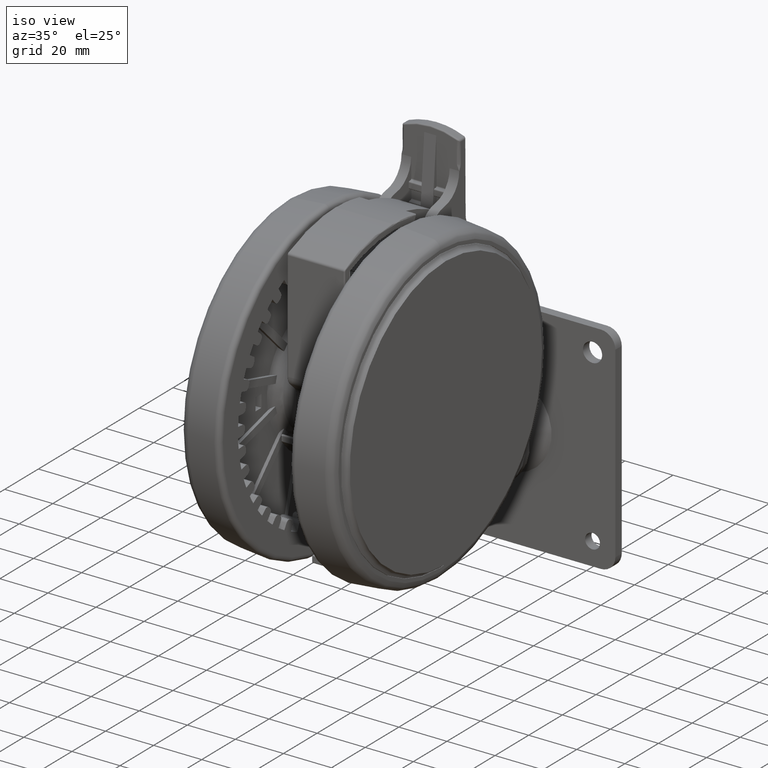
[diagram: clean part render]
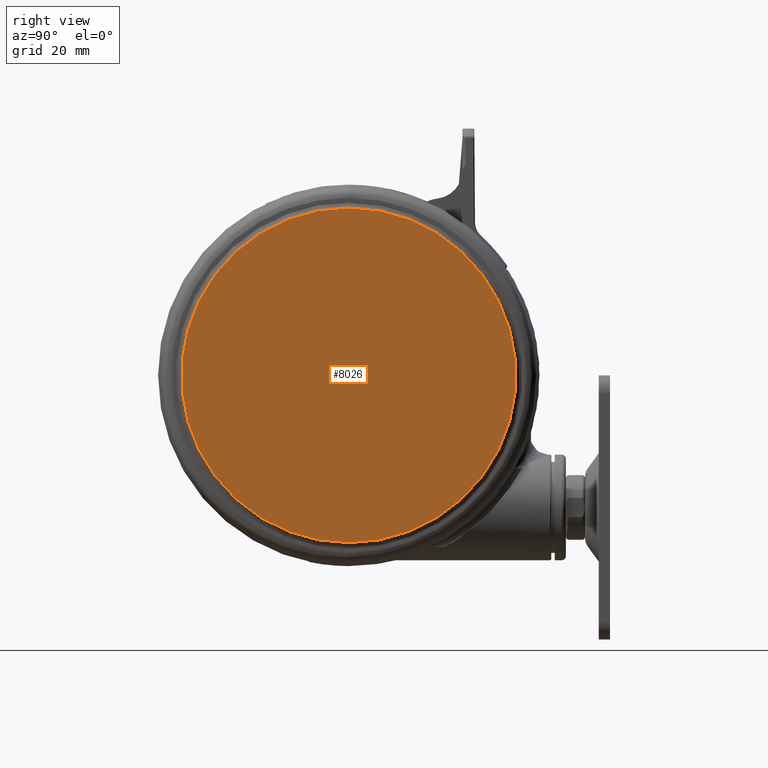
[diagram: tour spotlight — one face highlighted and labeled with its STEP entity id]
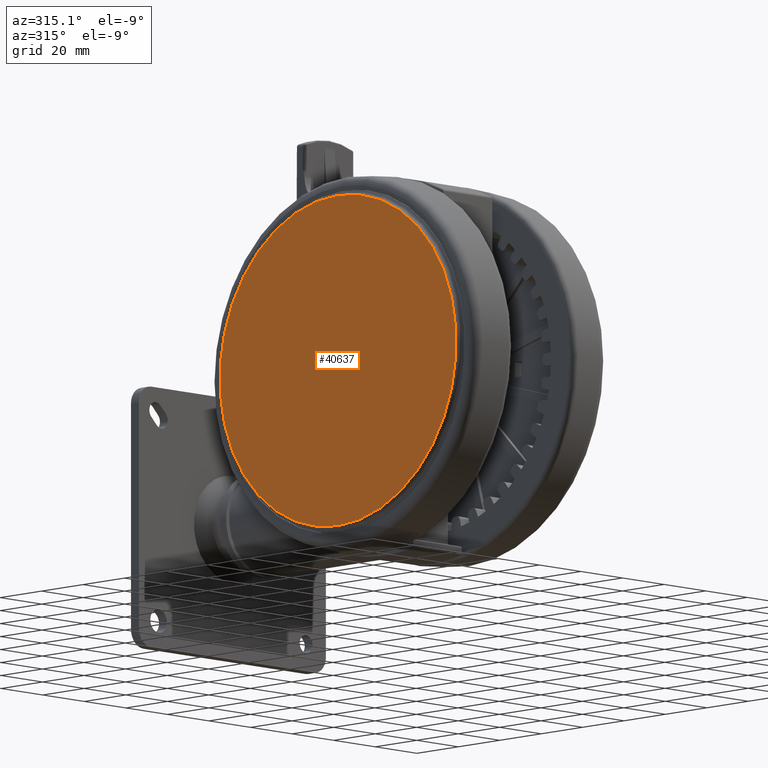
[diagram: tour spotlight — one face highlighted and labeled with its STEP entity id]
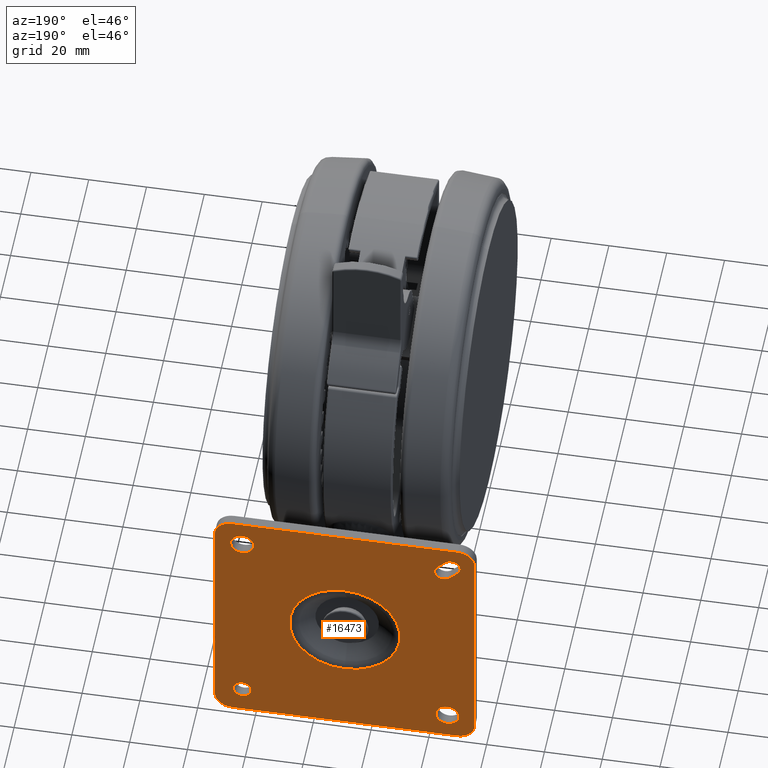
[diagram: tour spotlight — one face highlighted and labeled with its STEP entity id]
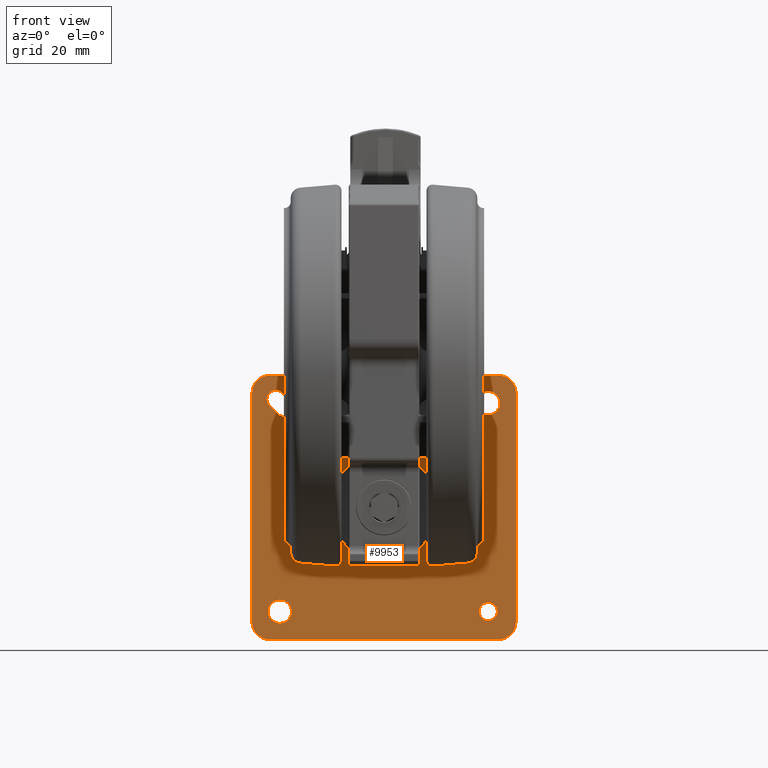
[diagram: tour spotlight — one face highlighted and labeled with its STEP entity id]
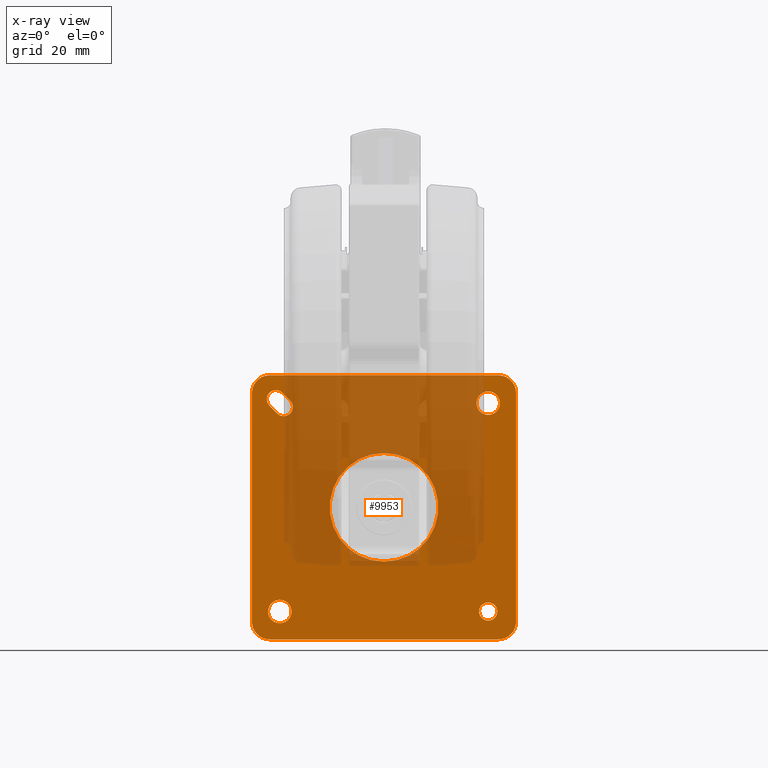
[diagram: x-ray of the same camera — body ghosted, this tour face saturated]
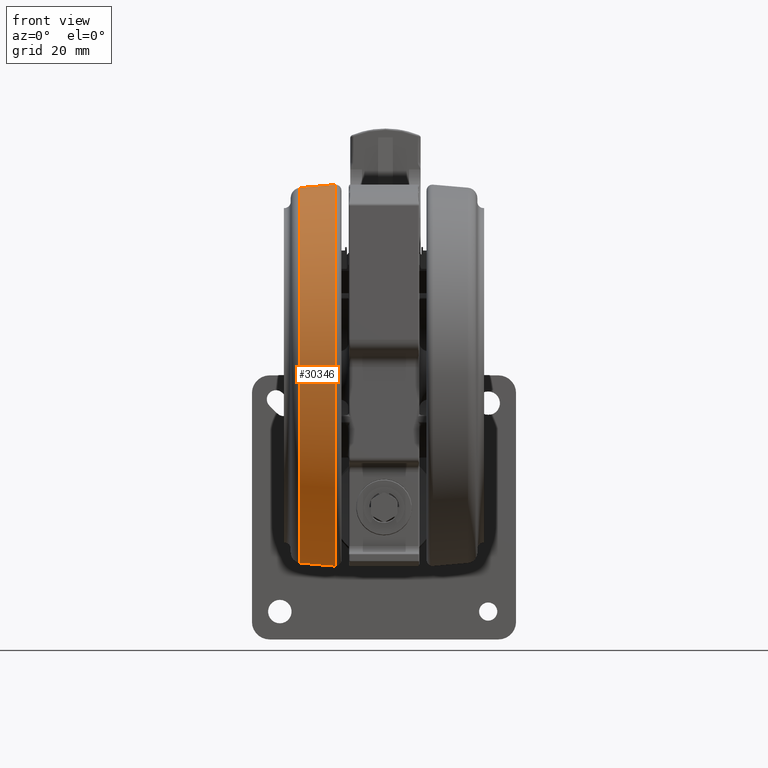
[diagram: tour spotlight — one face highlighted and labeled with its STEP entity id]
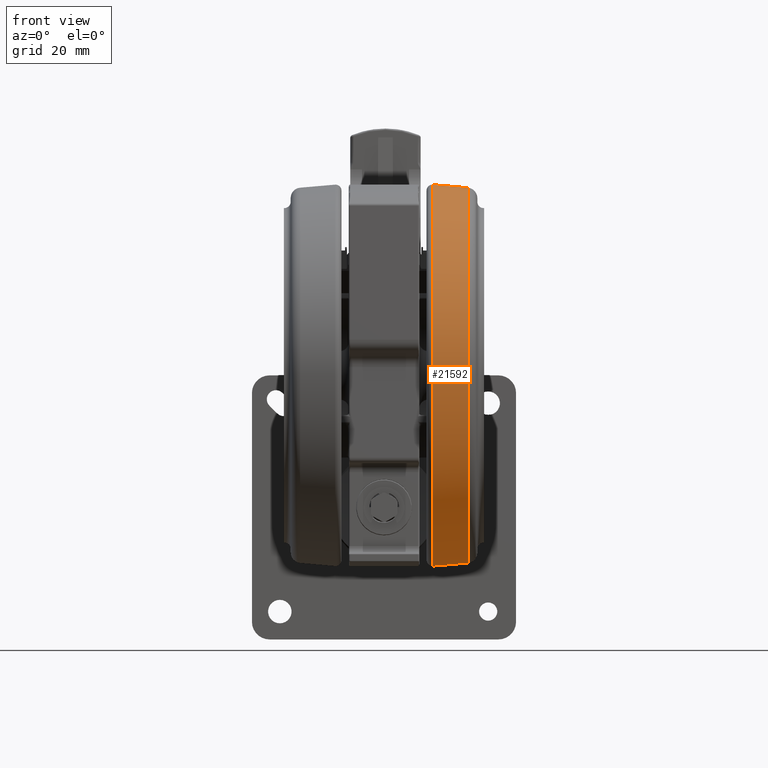
[diagram: tour spotlight — one face highlighted and labeled with its STEP entity id]
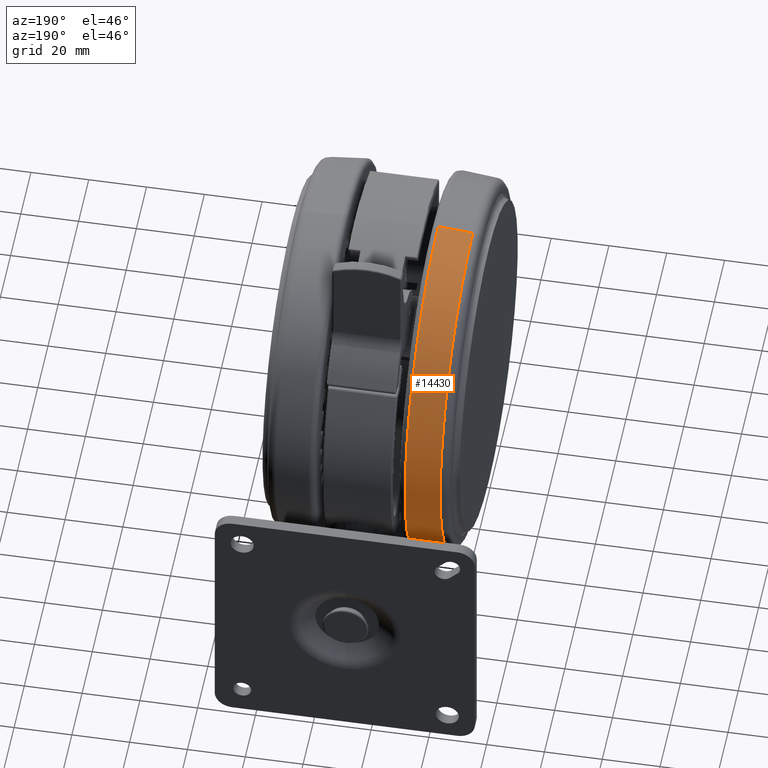
[diagram: tour spotlight — one face highlighted and labeled with its STEP entity id]
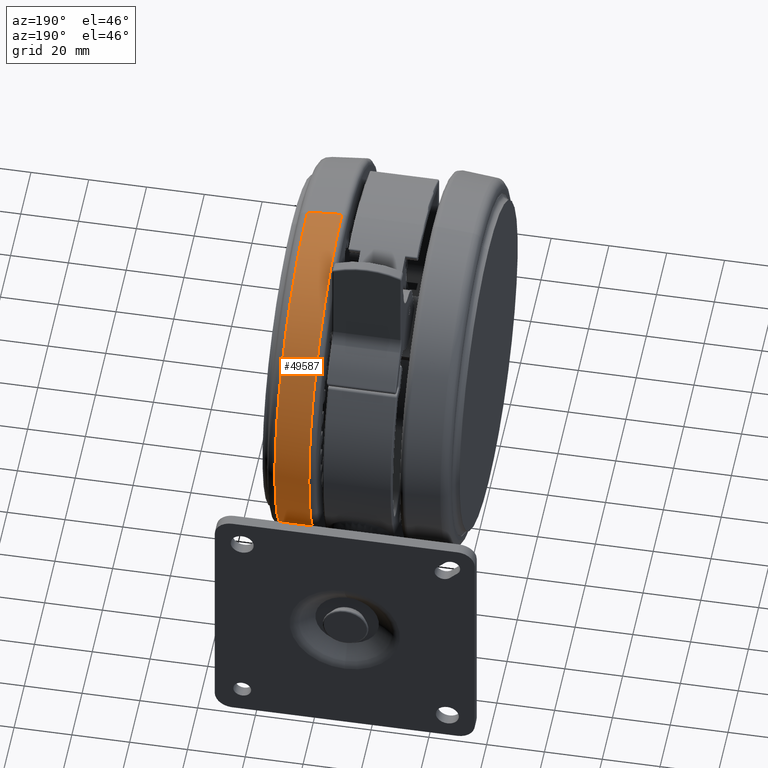
[diagram: tour spotlight — one face highlighted and labeled with its STEP entity id]
A machine part: a face-by-face anatomy tour. The part has 2612 B-rep faces; the first image is the clean iso view, then the 8 largest visible faces are spotlighted one at a time (largest first), each with its STEP entity span.

Face 1 — right view, entity #8026. In plain terms, the highlighted planar face has unit normal (1, 0, 0).
Definition (entity closure, byte-faithful):
#1120 = EDGE_CURVE ( 'NONE', #50924, #71392, #28339, .T. ) ;
#4548 = ORIENTED_EDGE ( 'NONE', *, *, #1120, .T. ) ;
#8026 = ADVANCED_FACE ( 'NONE', ( #55166 ), #8477, .T. ) ;
#8477 = PLANE ( 'NONE',  #77675 ) ;
#10067 = ORIENTED_EDGE ( 'NONE', *, *, #20311, .T. ) ;
#20095 = CARTESIAN_POINT ( 'NONE',  ( 57.00000000000000000, -1.516846258613197000E-014, 2.168404344971008900E-015 ) ) ;
#20311 = EDGE_CURVE ( 'NONE', #71392, #50924, #52476, .T. ) ;
#21277 = DIRECTION ( 'NONE',  ( 0.0000000000000000000, 0.0000000000000000000, 1.000000000000000000 ) ) ;
#28339 = CIRCLE ( 'NONE', #58859, 57.00000000000000000 ) ;
#30460 = DIRECTION ( 'NONE',  ( 0.0000000000000000000, 0.0000000000000000000, 1.000000000000000000 ) ) ;
#33820 = CARTESIAN_POINT ( 'NONE',  ( 0.0000000000000000000, 0.0000000000000000000, 2.168404344971008900E-015 ) ) ;
#37102 = CARTESIAN_POINT ( 'NONE',  ( 0.0000000000000000000, 0.0000000000000000000, 2.168404344971008900E-015 ) ) ;
#43526 = DIRECTION ( 'NONE',  ( 1.000000000000000000, -3.885780586188049900E-016, 0.0000000000000000000 ) ) ;
#50924 = VERTEX_POINT ( 'NONE', #58565 ) ;
#52476 = CIRCLE ( 'NONE', #78544, 57.00000000000000000 ) ;
#55166 = FACE_OUTER_BOUND ( 'NONE', #81754, .T. ) ;
#58565 = CARTESIAN_POINT ( 'NONE',  ( -57.00000000000000000, 2.214894934127188600E-014, 2.168404344971008900E-015 ) ) ;
#58859 = AXIS2_PLACEMENT_3D ( 'NONE', #37102, #81641, #43526 ) ;
#65891 = DIRECTION ( 'NONE',  ( 1.000000000000000000, -3.885780586188049900E-016, 0.0000000000000000000 ) ) ;
#68701 = CARTESIAN_POINT ( 'NONE',  ( 0.0000000000000000000, 0.0000000000000000000, 2.168404344971008900E-015 ) ) ;
#71392 = VERTEX_POINT ( 'NONE', #20095 ) ;
#75041 = DIRECTION ( 'NONE',  ( 1.000000000000000000, -3.885780586188049900E-016, 0.0000000000000000000 ) ) ;
#77675 = AXIS2_PLACEMENT_3D ( 'NONE', #33820, #21277, #65891 ) ;
#78544 = AXIS2_PLACEMENT_3D ( 'NONE', #68701, #30460, #75041 ) ;
#81641 = DIRECTION ( 'NONE',  ( 0.0000000000000000000, 0.0000000000000000000, 1.000000000000000000 ) ) ;
#81754 = EDGE_LOOP ( 'NONE', ( #4548, #10067 ) ) ;

Face 2 — auxiliary view, entity #40637. In plain terms, the highlighted planar face has unit normal (-1, 0, 0).
Definition (entity closure, byte-faithful):
#10881 = AXIS2_PLACEMENT_3D ( 'NONE', #69934, #31684, #76250 ) ;
#14899 = EDGE_CURVE ( 'NONE', #31316, #31272, #49527, .T. ) ;
#22853 = AXIS2_PLACEMENT_3D ( 'NONE', #67783, #35984, #80538 ) ;
#23168 = PLANE ( 'NONE',  #22853 ) ;
#29698 = CARTESIAN_POINT ( 'NONE',  ( 0.0000000000000000000, 0.0000000000000000000, -68.20000000000008800 ) ) ;
#29818 = EDGE_CURVE ( 'NONE', #31272, #31316, #36738, .T. ) ;
#30174 = FACE_OUTER_BOUND ( 'NONE', #42712, .T. ) ;
#31272 = VERTEX_POINT ( 'NONE', #49348 ) ;
#31316 = VERTEX_POINT ( 'NONE', #62393 ) ;
#31684 = DIRECTION ( 'NONE',  ( 0.0000000000000000000, 0.0000000000000000000, -1.000000000000000000 ) ) ;
#35571 = ORIENTED_EDGE ( 'NONE', *, *, #14899, .T. ) ;
#35984 = DIRECTION ( 'NONE',  ( 0.0000000000000000000, 0.0000000000000000000, -1.000000000000000000 ) ) ;
#36143 = DIRECTION ( 'NONE',  ( -1.000000000000000000, 0.0000000000000000000, 0.0000000000000000000 ) ) ;
#36738 = CIRCLE ( 'NONE', #10881, 57.00000000000000000 ) ;
#40637 = ADVANCED_FACE ( 'NONE', ( #30174 ), #23168, .T. ) ;
#42712 = EDGE_LOOP ( 'NONE', ( #35571, #74150 ) ) ;
#47246 = AXIS2_PLACEMENT_3D ( 'NONE', #29698, #74288, #36143 ) ;
#49348 = CARTESIAN_POINT ( 'NONE',  ( -57.00000000000000000, 6.980486755139912900E-015, -68.20000000000008800 ) ) ;
#49527 = CIRCLE ( 'NONE', #47246, 57.00000000000000000 ) ;
#62393 = CARTESIAN_POINT ( 'NONE',  ( 57.00000000000000000, 0.0000000000000000000, -68.20000000000008800 ) ) ;
#67783 = CARTESIAN_POINT ( 'NONE',  ( 0.0000000000000000000, 0.0000000000000000000, -68.20000000000008800 ) ) ;
#69934 = CARTESIAN_POINT ( 'NONE',  ( 0.0000000000000000000, 0.0000000000000000000, -68.20000000000008800 ) ) ;
#74150 = ORIENTED_EDGE ( 'NONE', *, *, #29818, .T. ) ;
#74288 = DIRECTION ( 'NONE',  ( 0.0000000000000000000, 0.0000000000000000000, -1.000000000000000000 ) ) ;
#76250 = DIRECTION ( 'NONE',  ( -1.000000000000000000, 0.0000000000000000000, 0.0000000000000000000 ) ) ;
#80538 = DIRECTION ( 'NONE',  ( -1.000000000000000000, 0.0000000000000000000, 0.0000000000000000000 ) ) ;

Face 3 — auxiliary view, entity #16473. In plain terms, the highlighted planar face has unit normal (-0, -1, -0).
Definition (entity closure, byte-faithful):
#115 = AXIS2_PLACEMENT_3D ( 'NONE', #45879, #7668, #52278 ) ;
#154 = ORIENTED_EDGE ( 'NONE', *, *, #12690, .F. ) ;
#1093 = EDGE_CURVE ( 'NONE', #22807, #79114, #49373, .T. ) ;
#1169 = EDGE_CURVE ( 'NONE', #31422, #22379, #77191, .T. ) ;
#1447 = VECTOR ( 'NONE', #30300, 1000.000000000000100 ) ;
#1642 = LINE ( 'NONE', #33021, #67485 ) ;
#1824 = VERTEX_POINT ( 'NONE', #72280 ) ;
#1995 = VECTOR ( 'NONE', #55781, 1000.000000000000000 ) ;
#2106 = EDGE_CURVE ( 'NONE', #66263, #18284, #30172, .T. ) ;
#2372 = EDGE_CURVE ( 'NONE', #73530, #33333, #75983, .T. ) ;
#2755 = CARTESIAN_POINT ( 'NONE',  ( 13.94350288425429200, 88.99999999999994300, -68.25649711574547500 ) ) ;
#4233 = ORIENTED_EDGE ( 'NONE', *, *, #41600, .T. ) ;
#4270 = EDGE_CURVE ( 'NONE', #44965, #57533, #19049, .T. ) ;
#4754 = DIRECTION ( 'NONE',  ( -1.000000000000000000, -3.469446951953622900E-015, 2.710505431213768000E-016 ) ) ;
#5252 = ORIENTED_EDGE ( 'NONE', *, *, #56586, .T. ) ;
#5589 = DIRECTION ( 'NONE',  ( -3.720744363710750200E-015, 1.000000000000000000, 1.577721810442024700E-030 ) ) ;
#5860 = CARTESIAN_POINT ( 'NONE',  ( 10.84350288425428500, 88.99999999999992900, -68.25649711574547500 ) ) ;
#6876 = CIRCLE ( 'NONE', #58065, 3.999999999999989800 ) ;
#7549 = EDGE_CURVE ( 'NONE', #63924, #22379, #23290, .T. ) ;
#7668 = DIRECTION ( 'NONE',  ( 3.720744363710750200E-015, -1.000000000000000000, -1.577721810442024700E-030 ) ) ;
#7692 = CARTESIAN_POINT ( 'NONE',  ( 83.99999999999998600, 89.00000000000018500, 10.89999999999991700 ) ) ;
#8478 = EDGE_LOOP ( 'NONE', ( #58381, #63881 ) ) ;
#8622 = ORIENTED_EDGE ( 'NONE', *, *, #59380, .T. ) ;
#10371 = ORIENTED_EDGE ( 'NONE', *, *, #62015, .F. ) ;
#11189 = CARTESIAN_POINT ( 'NONE',  ( 6.938893903907228400E-015, 88.99999999999988600, 10.89999999999994500 ) ) ;
#11328 = FACE_BOUND ( 'NONE', #43457, .T. ) ;
#11579 = CIRCLE ( 'NONE', #41534, 3.100000000000022700 ) ;
#11849 = EDGE_CURVE ( 'NONE', #45661, #27768, #1642, .T. ) ;
#12273 = DIRECTION ( 'NONE',  ( 1.000000000000000000, 4.476705744456268300E-015, 0.0000000000000000000 ) ) ;
#12516 = CARTESIAN_POINT ( 'NONE',  ( 5.999999999999991100, 88.99999999999991500, -73.10000000000005100 ) ) ;
#12568 = CARTESIAN_POINT ( 'NONE',  ( 80.50000000000659400, 89.00000000000017100, 1.400000000006520900 ) ) ;
#12690 = EDGE_CURVE ( 'NONE', #55326, #55475, #18931, .T. ) ;
#13082 = CARTESIAN_POINT ( 'NONE',  ( 83.99999999999998600, 89.00000000000018500, -73.10000000000008000 ) ) ;
#13325 = FACE_BOUND ( 'NONE', #8478, .T. ) ;
#13493 = CARTESIAN_POINT ( 'NONE',  ( 90.00000000000000000, 89.00000000000021300, 4.899999999999911500 ) ) ;
#14228 = CARTESIAN_POINT ( 'NONE',  ( 77.40000000000660000, 89.00000000000015600, 1.400000000006521800 ) ) ;
#14620 = EDGE_CURVE ( 'NONE', #1824, #55475, #20597, .T. ) ;
#15443 = DIRECTION ( 'NONE',  ( -3.720744363710750200E-015, 1.000000000000000000, 1.577721810442024700E-030 ) ) ;
#16473 = ADVANCED_FACE ( 'NONE', ( #11328, #13325, #28263, #77101, #60238, #43267 ), #56292, .F. ) ;
#16476 = CARTESIAN_POINT ( 'NONE',  ( 10.84350288425428500, 88.99999999999992900, -68.25649711574547500 ) ) ;
#17098 = CIRCLE ( 'NONE', #25046, 19.11832111921495800 ) ;
#18284 = VERTEX_POINT ( 'NONE', #48751 ) ;
#18386 = LINE ( 'NONE', #23925, #1447 ) ;
#18881 = AXIS2_PLACEMENT_3D ( 'NONE', #12516, #57124, #18946 ) ;
#18931 = LINE ( 'NONE', #11189, #1995 ) ;
#18946 = DIRECTION ( 'NONE',  ( -1.000000000000000000, -4.625929269271486100E-015, -2.312964634635743100E-015 ) ) ;
#18996 = DIRECTION ( 'NONE',  ( -1.000000000000000000, -4.476705744456288800E-015, 2.797941090285180500E-016 ) ) ;
#19049 = CIRCLE ( 'NONE', #50775, 3.999999999999989800 ) ;
#19504 = DIRECTION ( 'NONE',  ( -1.000000000000000000, -4.625929269271481400E-015, 2.312964634635740700E-015 ) ) ;
#19554 = AXIS2_PLACEMENT_3D ( 'NONE', #20674, #65278, #27057 ) ;
#19919 = DIRECTION ( 'NONE',  ( 3.720744363710750200E-015, -1.000000000000000000, -1.577721810442024700E-030 ) ) ;
#20047 = EDGE_LOOP ( 'NONE', ( #154, #48408, #52335, #57800, #55417, #5252, #28813, #79066 ) ) ;
#20597 = CIRCLE ( 'NONE', #18881, 5.999999999999999100 ) ;
#20674 = CARTESIAN_POINT ( 'NONE',  ( 6.000000000000012400, 88.99999999999991500, 4.899999999999924900 ) ) ;
#21182 = VERTEX_POINT ( 'NONE', #22294 ) ;
#21288 = VECTOR ( 'NONE', #60706, 1000.000000000000000 ) ;
#22030 = ORIENTED_EDGE ( 'NONE', *, *, #11849, .F. ) ;
#22294 = CARTESIAN_POINT ( 'NONE',  ( 25.88167888078495000, 88.99999999999998600, -34.10000000000005800 ) ) ;
#22379 = VERTEX_POINT ( 'NONE', #13493 ) ;
#22807 = VERTEX_POINT ( 'NONE', #31230 ) ;
#22864 = CIRCLE ( 'NONE', #74812, 3.099999999999991700 ) ;
#22876 = DIRECTION ( 'NONE',  ( 1.000000000000000000, 4.476705744456268300E-015, 0.0000000000000000000 ) ) ;
#23290 = LINE ( 'NONE', #47651, #21288 ) ;
#23925 = CARTESIAN_POINT ( 'NONE',  ( 13.03553390593259600, 88.99999999999992900, -70.44852813742376400 ) ) ;
#24275 = CARTESIAN_POINT ( 'NONE',  ( 6.000000000000012400, 88.99999999999991500, 10.89999999999992400 ) ) ;
#24508 = CARTESIAN_POINT ( 'NONE',  ( 44.99999999999990800, 89.00000000000005700, -34.10000000000006500 ) ) ;
#25046 = AXIS2_PLACEMENT_3D ( 'NONE', #58121, #19919, #64533 ) ;
#25488 = CARTESIAN_POINT ( 'NONE',  ( 13.49999999999339900, 88.99999999999992900, 1.400000000006533400 ) ) ;
#26200 = LINE ( 'NONE', #68316, #75030 ) ;
#27057 = DIRECTION ( 'NONE',  ( -1.000000000000000000, -4.625929269271486100E-015, 2.891205793294678800E-016 ) ) ;
#27207 = CIRCLE ( 'NONE', #30065, 6.000000000000005300 ) ;
#27271 = EDGE_CURVE ( 'NONE', #31422, #34780, #81882, .T. ) ;
#27768 = VERTEX_POINT ( 'NONE', #31804 ) ;
#28263 = FACE_BOUND ( 'NONE', #56221, .T. ) ;
#28813 = ORIENTED_EDGE ( 'NONE', *, *, #40702, .F. ) ;
#28851 = CARTESIAN_POINT ( 'NONE',  ( 90.00000000000000000, 89.00000000000021300, -73.10000000000008000 ) ) ;
#30065 = AXIS2_PLACEMENT_3D ( 'NONE', #13082, #57691, #19504 ) ;
#30172 = CIRCLE ( 'NONE', #82367, 3.099999999999991700 ) ;
#30300 = DIRECTION ( 'NONE',  ( -0.7071067811865413600, -2.630963570641473100E-015, -0.7071067811865536800 ) ) ;
#30872 = DIRECTION ( 'NONE',  ( -1.000000000000000000, -3.629447303787182700E-015, 3.629447303787182900E-016 ) ) ;
#30879 = DIRECTION ( 'NONE',  ( -1.000000000000000000, -3.720744363710750200E-015, 2.775557561562890400E-016 ) ) ;
#31017 = VECTOR ( 'NONE', #43634, 1000.000000000000000 ) ;
#31230 = CARTESIAN_POINT ( 'NONE',  ( 5.499999999993419500, 88.99999999999990100, 1.400000000006536000 ) ) ;
#31422 = VERTEX_POINT ( 'NONE', #7692 ) ;
#31547 = EDGE_LOOP ( 'NONE', ( #55879, #77618 ) ) ;
#31804 = CARTESIAN_POINT ( 'NONE',  ( 8.651471862575983000, 88.99999999999991500, -66.06446609406715700 ) ) ;
#32267 = CARTESIAN_POINT ( 'NONE',  ( 6.938893903907228400E-015, 88.99999999999988600, 4.899999999999924900 ) ) ;
#32326 = DIRECTION ( 'NONE',  ( 3.720744363710750200E-015, -1.000000000000000000, -1.577721810442024700E-030 ) ) ;
#33021 = CARTESIAN_POINT ( 'NONE',  ( 5.964466094067137900, 88.99999999999991500, -68.75147186257601100 ) ) ;
#33188 = AXIS2_PLACEMENT_3D ( 'NONE', #81079, #42984, #4754 ) ;
#33333 = VERTEX_POINT ( 'NONE', #48930 ) ;
#34017 = CARTESIAN_POINT ( 'NONE',  ( 80.50000000000659400, 89.00000000000017100, 1.400000000006520900 ) ) ;
#34577 = CARTESIAN_POINT ( 'NONE',  ( 80.50000000000659400, 89.00000000000017100, -69.60000000000667300 ) ) ;
#34780 = VERTEX_POINT ( 'NONE', #24275 ) ;
#37218 = EDGE_CURVE ( 'NONE', #33333, #57789, #18386, .T. ) ;
#38052 = CARTESIAN_POINT ( 'NONE',  ( 64.11832111921486900, 89.00000000000011400, -34.10000000000007200 ) ) ;
#39652 = CARTESIAN_POINT ( 'NONE',  ( 10.34852813742374200, 88.99999999999992900, -73.13553390593266100 ) ) ;
#40043 = AXIS2_PLACEMENT_3D ( 'NONE', #24508, #69122, #30872 ) ;
#40498 = DIRECTION ( 'NONE',  ( -1.000000000000000000, -4.476705744456288800E-015, 2.797941090285180500E-016 ) ) ;
#40681 = CIRCLE ( 'NONE', #115, 3.999999999999989800 ) ;
#40702 = EDGE_CURVE ( 'NONE', #1824, #44324, #26200, .T. ) ;
#40728 = ORIENTED_EDGE ( 'NONE', *, *, #66026, .F. ) ;
#41039 = DIRECTION ( 'NONE',  ( -1.000000000000000000, -3.469446951953622900E-015, 0.0000000000000000000 ) ) ;
#41534 = AXIS2_PLACEMENT_3D ( 'NONE', #53655, #15443, #60066 ) ;
#41600 = EDGE_CURVE ( 'NONE', #21182, #61531, #17098, .T. ) ;
#42974 = DIRECTION ( 'NONE',  ( 1.000000000000000000, 3.720744363710750200E-015, -2.004569350017642500E-016 ) ) ;
#42984 = DIRECTION ( 'NONE',  ( 3.720744363710750200E-015, -1.000000000000000000, -1.577721810442024700E-030 ) ) ;
#43267 = FACE_OUTER_BOUND ( 'NONE', #20047, .T. ) ;
#43457 = EDGE_LOOP ( 'NONE', ( #4233, #71360 ) ) ;
#43634 = DIRECTION ( 'NONE',  ( -1.000000000000000000, -3.720744363710750200E-015, 4.625929269271454400E-017 ) ) ;
#43796 = CARTESIAN_POINT ( 'NONE',  ( 83.99999999999998600, 89.00000000000018500, 4.899999999999911500 ) ) ;
#44215 = EDGE_CURVE ( 'NONE', #79114, #22807, #40681, .T. ) ;
#44324 = VERTEX_POINT ( 'NONE', #78684 ) ;
#44965 = VERTEX_POINT ( 'NONE', #69438 ) ;
#45037 = CIRCLE ( 'NONE', #64643, 3.100000000000005400 ) ;
#45661 = VERTEX_POINT ( 'NONE', #76763 ) ;
#45879 = CARTESIAN_POINT ( 'NONE',  ( 9.499999999993409700, 88.99999999999991500, 1.400000000006534900 ) ) ;
#46563 = EDGE_CURVE ( 'NONE', #55326, #34780, #63470, .T. ) ;
#47651 = CARTESIAN_POINT ( 'NONE',  ( 90.00000000000000000, 89.00000000000021300, -79.10000000000009400 ) ) ;
#47894 = ORIENTED_EDGE ( 'NONE', *, *, #2372, .F. ) ;
#48408 = ORIENTED_EDGE ( 'NONE', *, *, #46563, .T. ) ;
#48751 = CARTESIAN_POINT ( 'NONE',  ( 83.60000000000658800, 89.00000000000018500, 1.400000000006519800 ) ) ;
#48930 = CARTESIAN_POINT ( 'NONE',  ( 13.03553390593259600, 88.99999999999992900, -70.44852813742376400 ) ) ;
#49373 = CIRCLE ( 'NONE', #33188, 3.999999999999989800 ) ;
#50230 = DIRECTION ( 'NONE',  ( -1.000000000000000000, -4.625929269271481400E-015, 2.891205793294675900E-016 ) ) ;
#50515 = DIRECTION ( 'NONE',  ( -3.720744363710750200E-015, 1.000000000000000000, 1.577721810442024700E-030 ) ) ;
#50775 = AXIS2_PLACEMENT_3D ( 'NONE', #34577, #79133, #41039 ) ;
#51020 = EDGE_CURVE ( 'NONE', #18284, #66263, #22864, .T. ) ;
#52278 = DIRECTION ( 'NONE',  ( -1.000000000000000000, -3.469446951953622900E-015, 2.710505431213768000E-016 ) ) ;
#52335 = ORIENTED_EDGE ( 'NONE', *, *, #27271, .F. ) ;
#52938 = CARTESIAN_POINT ( 'NONE',  ( -6.938893903907228400E-015, 88.99999999999988600, -73.10000000000005100 ) ) ;
#53655 = CARTESIAN_POINT ( 'NONE',  ( 8.156497115745391800, 88.99999999999991500, -70.94350288425435700 ) ) ;
#55326 = VERTEX_POINT ( 'NONE', #32267 ) ;
#55417 = ORIENTED_EDGE ( 'NONE', *, *, #7549, .F. ) ;
#55475 = VERTEX_POINT ( 'NONE', #52938 ) ;
#55781 = DIRECTION ( 'NONE',  ( -2.220446049250315100E-016, 5.146084811402689800E-031, -1.000000000000000000 ) ) ;
#55879 = ORIENTED_EDGE ( 'NONE', *, *, #1093, .T. ) ;
#56221 = EDGE_LOOP ( 'NONE', ( #8622, #79116 ) ) ;
#56292 = PLANE ( 'NONE',  #70290 ) ;
#56586 = EDGE_CURVE ( 'NONE', #63924, #44324, #27207, .T. ) ;
#57124 = DIRECTION ( 'NONE',  ( -3.720744363710750200E-015, 1.000000000000000000, 1.577721810442024700E-030 ) ) ;
#57180 = DIRECTION ( 'NONE',  ( 3.720744363710750200E-015, -1.000000000000000000, -1.577721810442024700E-030 ) ) ;
#57533 = VERTEX_POINT ( 'NONE', #62529 ) ;
#57691 = DIRECTION ( 'NONE',  ( -3.720744363710750200E-015, 1.000000000000000000, 1.577721810442024700E-030 ) ) ;
#57789 = VERTEX_POINT ( 'NONE', #39652 ) ;
#57800 = ORIENTED_EDGE ( 'NONE', *, *, #1169, .T. ) ;
#58065 = AXIS2_PLACEMENT_3D ( 'NONE', #70579, #32326, #76906 ) ;
#58121 = CARTESIAN_POINT ( 'NONE',  ( 44.99999999999990800, 89.00000000000005700, -34.10000000000006500 ) ) ;
#58381 = ORIENTED_EDGE ( 'NONE', *, *, #2106, .T. ) ;
#58690 = DIRECTION ( 'NONE',  ( 0.7071067811865477900, 2.630963570641497600E-015, 0.7071067811865473500 ) ) ;
#59380 = EDGE_CURVE ( 'NONE', #57533, #44965, #6876, .T. ) ;
#60066 = DIRECTION ( 'NONE',  ( 1.000000000000000000, 4.476705744456243800E-015, 0.0000000000000000000 ) ) ;
#60238 = FACE_BOUND ( 'NONE', #73560, .T. ) ;
#60706 = DIRECTION ( 'NONE',  ( 6.784696261598201600E-017, -1.088338489659151200E-030, 1.000000000000000000 ) ) ;
#61083 = DIRECTION ( 'NONE',  ( -3.720744363710750200E-015, 1.000000000000000000, 1.577721810442024700E-030 ) ) ;
#61531 = VERTEX_POINT ( 'NONE', #38052 ) ;
#62015 = EDGE_CURVE ( 'NONE', #27768, #73530, #45037, .T. ) ;
#62529 = CARTESIAN_POINT ( 'NONE',  ( 76.50000000000660800, 89.00000000000015600, -69.60000000000667300 ) ) ;
#62849 = CARTESIAN_POINT ( 'NONE',  ( 90.00000000000000000, 89.00000000000021300, 10.89999999999991700 ) ) ;
#63470 = CIRCLE ( 'NONE', #19554, 5.999999999999999100 ) ;
#63881 = ORIENTED_EDGE ( 'NONE', *, *, #51020, .T. ) ;
#63924 = VERTEX_POINT ( 'NONE', #28851 ) ;
#64533 = DIRECTION ( 'NONE',  ( -1.000000000000000000, -3.629447303787182700E-015, 3.629447303787182900E-016 ) ) ;
#64643 = AXIS2_PLACEMENT_3D ( 'NONE', #5860, #50515, #12273 ) ;
#65278 = DIRECTION ( 'NONE',  ( -3.720744363710750200E-015, 1.000000000000000000, 1.577721810442024700E-030 ) ) ;
#66026 = EDGE_CURVE ( 'NONE', #57789, #45661, #11579, .T. ) ;
#66263 = VERTEX_POINT ( 'NONE', #14228 ) ;
#67485 = VECTOR ( 'NONE', #58690, 999.9999999999998900 ) ;
#68014 = EDGE_CURVE ( 'NONE', #61531, #21182, #79869, .T. ) ;
#68316 = CARTESIAN_POINT ( 'NONE',  ( -6.938893903907228400E-015, 88.99999999999988600, -79.10000000000006500 ) ) ;
#69122 = DIRECTION ( 'NONE',  ( 3.720744363710750200E-015, -1.000000000000000000, -1.577721810442024700E-030 ) ) ;
#69131 = DIRECTION ( 'NONE',  ( 3.720744363710750200E-015, -1.000000000000000000, -1.577721810442024700E-030 ) ) ;
#69438 = CARTESIAN_POINT ( 'NONE',  ( 84.50000000000658000, 89.00000000000018500, -69.60000000000667300 ) ) ;
#70290 = AXIS2_PLACEMENT_3D ( 'NONE', #75196, #69131, #30879 ) ;
#70579 = CARTESIAN_POINT ( 'NONE',  ( 80.50000000000659400, 89.00000000000017100, -69.60000000000667300 ) ) ;
#71360 = ORIENTED_EDGE ( 'NONE', *, *, #68014, .T. ) ;
#71661 = AXIS2_PLACEMENT_3D ( 'NONE', #43796, #5589, #50230 ) ;
#72280 = CARTESIAN_POINT ( 'NONE',  ( 5.999999999999991100, 88.99999999999991500, -79.10000000000006500 ) ) ;
#73530 = VERTEX_POINT ( 'NONE', #2755 ) ;
#73560 = EDGE_LOOP ( 'NONE', ( #22030, #40728, #81342, #47894, #10371 ) ) ;
#74812 = AXIS2_PLACEMENT_3D ( 'NONE', #34017, #78595, #40498 ) ;
#75030 = VECTOR ( 'NONE', #42974, 1000.000000000000000 ) ;
#75196 = CARTESIAN_POINT ( 'NONE',  ( 45.00000000000000000, 89.00000000000005700, -34.10000000000006500 ) ) ;
#75983 = CIRCLE ( 'NONE', #80781, 3.100000000000005400 ) ;
#76763 = CARTESIAN_POINT ( 'NONE',  ( 5.964466094067145000, 88.99999999999991500, -68.75147186257601100 ) ) ;
#76906 = DIRECTION ( 'NONE',  ( -1.000000000000000000, -3.469446951953622900E-015, 0.0000000000000000000 ) ) ;
#77101 = FACE_BOUND ( 'NONE', #31547, .T. ) ;
#77191 = CIRCLE ( 'NONE', #71661, 6.000000000000005300 ) ;
#77618 = ORIENTED_EDGE ( 'NONE', *, *, #44215, .T. ) ;
#78595 = DIRECTION ( 'NONE',  ( 3.720744363710750200E-015, -1.000000000000000000, -1.577721810442024700E-030 ) ) ;
#78684 = CARTESIAN_POINT ( 'NONE',  ( 83.99999999999998600, 89.00000000000018500, -79.10000000000008000 ) ) ;
#79066 = ORIENTED_EDGE ( 'NONE', *, *, #14620, .T. ) ;
#79114 = VERTEX_POINT ( 'NONE', #25488 ) ;
#79116 = ORIENTED_EDGE ( 'NONE', *, *, #4270, .T. ) ;
#79133 = DIRECTION ( 'NONE',  ( 3.720744363710750200E-015, -1.000000000000000000, -1.577721810442024700E-030 ) ) ;
#79869 = CIRCLE ( 'NONE', #40043, 19.11832111921495800 ) ;
#80781 = AXIS2_PLACEMENT_3D ( 'NONE', #16476, #61083, #22876 ) ;
#81079 = CARTESIAN_POINT ( 'NONE',  ( 9.499999999993409700, 88.99999999999991500, 1.400000000006534900 ) ) ;
#81342 = ORIENTED_EDGE ( 'NONE', *, *, #37218, .F. ) ;
#81882 = LINE ( 'NONE', #62849, #31017 ) ;
#82367 = AXIS2_PLACEMENT_3D ( 'NONE', #12568, #57180, #18996 ) ;

Face 4 — front view, entity #9953. An x-ray twin of the same camera follows (body ghosted, this face saturated) — the face is partly hidden behind the body. In plain terms, the highlighted planar face has unit normal (-0, -1, -0).
Definition (entity closure, byte-faithful):
#588 = CARTESIAN_POINT ( 'NONE',  ( 13.94350288425430600, 85.19999999999994600, -68.25649711574547500 ) ) ;
#1286 = AXIS2_PLACEMENT_3D ( 'NONE', #48203, #9963, #54565 ) ;
#2184 = AXIS2_PLACEMENT_3D ( 'NONE', #59255, #21041, #65656 ) ;
#2240 = AXIS2_PLACEMENT_3D ( 'NONE', #64169, #25967, #70602 ) ;
#2826 = EDGE_CURVE ( 'NONE', #44054, #35574, #14126, .T. ) ;
#3154 = CIRCLE ( 'NONE', #22414, 3.999999999999989800 ) ;
#3277 = CIRCLE ( 'NONE', #29286, 18.50000000000000000 ) ;
#3992 = EDGE_CURVE ( 'NONE', #19166, #14367, #3154, .T. ) ;
#4599 = CARTESIAN_POINT ( 'NONE',  ( 42.80796897832156100, 85.20000000000004500, -31.90796897832162000 ) ) ;
#5527 = VECTOR ( 'NONE', #7033, 1000.000000000000000 ) ;
#5615 = EDGE_CURVE ( 'NONE', #13620, #56868, #22501, .T. ) ;
#5914 = DIRECTION ( 'NONE',  ( 3.720744363710750200E-015, -1.000000000000000000, -1.577721810442024700E-030 ) ) ;
#5946 = FACE_BOUND ( 'NONE', #32804, .T. ) ;
#6346 = CARTESIAN_POINT ( 'NONE',  ( 90.00000000000000000, 85.20000000000021600, -73.10000000000008000 ) ) ;
#7000 = DIRECTION ( 'NONE',  ( -2.220446049250315100E-016, 5.146084811402689800E-031, -1.000000000000000000 ) ) ;
#7033 = DIRECTION ( 'NONE',  ( 0.7071067811865414700, 2.630963570641473900E-015, 0.7071067811865536800 ) ) ;
#7556 = EDGE_CURVE ( 'NONE', #45853, #13620, #70203, .T. ) ;
#7608 = VECTOR ( 'NONE', #7000, 1000.000000000000000 ) ;
#9034 = ORIENTED_EDGE ( 'NONE', *, *, #69483, .T. ) ;
#9048 = EDGE_CURVE ( 'NONE', #58463, #69631, #51025, .T. ) ;
#9127 = CARTESIAN_POINT ( 'NONE',  ( 6.000000000000025800, 85.19999999999990300, 10.89999999999992400 ) ) ;
#9313 = DIRECTION ( 'NONE',  ( -1.000000000000000000, -3.720744363710750200E-015, 2.775557561562890400E-016 ) ) ;
#9633 = LINE ( 'NONE', #32325, #7608 ) ;
#9667 = ORIENTED_EDGE ( 'NONE', *, *, #11895, .T. ) ;
#9953 = ADVANCED_FACE ( 'NONE', ( #37887, #5946, #71758, #54860, #20886, #39890 ), #41116, .T. ) ;
#9963 = DIRECTION ( 'NONE',  ( 3.720744363710750200E-015, -1.000000000000000000, -1.577721810442024700E-030 ) ) ;
#11895 = EDGE_CURVE ( 'NONE', #12674, #70744, #18602, .T. ) ;
#11980 = EDGE_LOOP ( 'NONE', ( #26734, #58857, #18218, #9667, #69785, #9034, #78995, #74931 ) ) ;
#12099 = CARTESIAN_POINT ( 'NONE',  ( 9.499999999993423900, 85.19999999999991800, 1.400000000006534900 ) ) ;
#12674 = VERTEX_POINT ( 'NONE', #79722 ) ;
#13620 = VERTEX_POINT ( 'NONE', #15484 ) ;
#14041 = ORIENTED_EDGE ( 'NONE', *, *, #21991, .F. ) ;
#14088 = EDGE_CURVE ( 'NONE', #26784, #80870, #24700, .T. ) ;
#14126 = LINE ( 'NONE', #40108, #33057 ) ;
#14226 = AXIS2_PLACEMENT_3D ( 'NONE', #29233, #73816, #35680 ) ;
#14281 = LINE ( 'NONE', #67675, #78075 ) ;
#14367 = VERTEX_POINT ( 'NONE', #73574 ) ;
#14895 = CARTESIAN_POINT ( 'NONE',  ( 44.99999999999992200, 85.20000000000006000, -34.10000000000006500 ) ) ;
#15484 = CARTESIAN_POINT ( 'NONE',  ( 10.34852813742375600, 85.19999999999990300, -73.13553390593266100 ) ) ;
#16411 = CARTESIAN_POINT ( 'NONE',  ( 83.99999999999998600, 85.20000000000018800, -79.10000000000008000 ) ) ;
#16777 = CARTESIAN_POINT ( 'NONE',  ( 84.50000000000658000, 85.20000000000018800, -69.60000000000667300 ) ) ;
#17525 = ORIENTED_EDGE ( 'NONE', *, *, #48898, .F. ) ;
#17589 = CIRCLE ( 'NONE', #50918, 6.000000000000005300 ) ;
#18141 = AXIS2_PLACEMENT_3D ( 'NONE', #75063, #36941, #81486 ) ;
#18170 = CARTESIAN_POINT ( 'NONE',  ( 84.00000000000000000, 85.20000000000018800, 4.899999999999911500 ) ) ;
#18218 = ORIENTED_EDGE ( 'NONE', *, *, #71024, .T. ) ;
#18327 = DIRECTION ( 'NONE',  ( 3.720744363710750200E-015, -1.000000000000000000, -1.577721810442024700E-030 ) ) ;
#18522 = DIRECTION ( 'NONE',  ( -1.000000000000000000, -3.469446951953622900E-015, 2.710505431213768000E-016 ) ) ;
#18602 = CIRCLE ( 'NONE', #2184, 5.999999999999999100 ) ;
#19166 = VERTEX_POINT ( 'NONE', #16777 ) ;
#19881 = CIRCLE ( 'NONE', #44169, 3.999999999999989800 ) ;
#20621 = DIRECTION ( 'NONE',  ( 3.720744363710750200E-015, -1.000000000000000000, -1.577721810442024700E-030 ) ) ;
#20886 = FACE_BOUND ( 'NONE', #66039, .T. ) ;
#21041 = DIRECTION ( 'NONE',  ( 3.720744363710750200E-015, -1.000000000000000000, -1.577721810442024700E-030 ) ) ;
#21290 = DIRECTION ( 'NONE',  ( -1.000000000000000000, -3.750753461571474600E-015, 3.750753461571474900E-016 ) ) ;
#21652 = CARTESIAN_POINT ( 'NONE',  ( 44.99999999999992200, 85.20000000000006000, -34.10000000000006500 ) ) ;
#21678 = DIRECTION ( 'NONE',  ( -1.000000000000000000, -3.720744363710750200E-015, 4.625929269271454400E-017 ) ) ;
#21991 = EDGE_CURVE ( 'NONE', #49869, #73314, #44239, .T. ) ;
#22414 = AXIS2_PLACEMENT_3D ( 'NONE', #44122, #5914, #50569 ) ;
#22501 = LINE ( 'NONE', #25965, #5527 ) ;
#22834 = VECTOR ( 'NONE', #58363, 999.9999999999998900 ) ;
#23085 = CARTESIAN_POINT ( 'NONE',  ( 77.40000000000662800, 85.20000000000015900, 1.400000000006521800 ) ) ;
#23211 = CARTESIAN_POINT ( 'NONE',  ( 6.000000000000005300, 85.19999999999990300, -79.10000000000006500 ) ) ;
#23533 = ORIENTED_EDGE ( 'NONE', *, *, #58909, .F. ) ;
#24422 = CARTESIAN_POINT ( 'NONE',  ( 6.000000000000025800, 85.19999999999990300, 4.899999999999924900 ) ) ;
#24588 = DIRECTION ( 'NONE',  ( -1.000000000000000000, -4.625929269271481400E-015, 2.891205793294675900E-016 ) ) ;
#24700 = LINE ( 'NONE', #57502, #56588 ) ;
#24886 = EDGE_LOOP ( 'NONE', ( #27458, #46019 ) ) ;
#25416 = EDGE_CURVE ( 'NONE', #35574, #48530, #72692, .T. ) ;
#25965 = CARTESIAN_POINT ( 'NONE',  ( 47.19203102167787700, 85.20000000000006000, -36.29203102167790000 ) ) ;
#25967 = DIRECTION ( 'NONE',  ( 3.720744363710750200E-015, -1.000000000000000000, -1.577721810442024700E-030 ) ) ;
#26719 = ORIENTED_EDGE ( 'NONE', *, *, #34265, .F. ) ;
#26734 = ORIENTED_EDGE ( 'NONE', *, *, #2826, .T. ) ;
#26784 = VERTEX_POINT ( 'NONE', #6346 ) ;
#27387 = CARTESIAN_POINT ( 'NONE',  ( 90.00000000000000000, 85.20000000000021600, 4.899999999999911500 ) ) ;
#27458 = ORIENTED_EDGE ( 'NONE', *, *, #9048, .F. ) ;
#27643 = DIRECTION ( 'NONE',  ( 3.720744363710750200E-015, -1.000000000000000000, -1.577721810442024700E-030 ) ) ;
#28017 = DIRECTION ( 'NONE',  ( -1.000000000000000000, -3.750753461571474600E-015, 3.750753461571474900E-016 ) ) ;
#28249 = CIRCLE ( 'NONE', #44278, 3.100000000000006300 ) ;
#28808 = EDGE_CURVE ( 'NONE', #43995, #45853, #56741, .T. ) ;
#29223 = AXIS2_PLACEMENT_3D ( 'NONE', #47255, #47536, #9313 ) ;
#29233 = CARTESIAN_POINT ( 'NONE',  ( 80.50000000000662200, 85.20000000000017300, 1.400000000006520900 ) ) ;
#29286 = AXIS2_PLACEMENT_3D ( 'NONE', #14895, #59522, #21290 ) ;
#29340 = EDGE_LOOP ( 'NONE', ( #26719, #23533 ) ) ;
#29634 = CIRCLE ( 'NONE', #54410, 3.099999999999991700 ) ;
#30779 = DIRECTION ( 'NONE',  ( -1.000000000000000000, -4.625929269271486100E-015, 2.891205793294678800E-016 ) ) ;
#31499 = ORIENTED_EDGE ( 'NONE', *, *, #7556, .F. ) ;
#32325 = CARTESIAN_POINT ( 'NONE',  ( 2.081668171172168500E-014, 85.19999999999988900, 10.89999999999994500 ) ) ;
#32421 = ORIENTED_EDGE ( 'NONE', *, *, #3992, .F. ) ;
#32513 = CARTESIAN_POINT ( 'NONE',  ( 63.50000000000011400, 85.20000000000011700, -34.10000000000007200 ) ) ;
#32764 = CIRCLE ( 'NONE', #73180, 6.000000000000005300 ) ;
#32804 = EDGE_LOOP ( 'NONE', ( #47723, #32421 ) ) ;
#33057 = VECTOR ( 'NONE', #21678, 1000.000000000000000 ) ;
#33528 = DIRECTION ( 'NONE',  ( 3.720744363710750200E-015, -1.000000000000000000, -1.577721810442024700E-030 ) ) ;
#33767 = VERTEX_POINT ( 'NONE', #35189 ) ;
#34265 = EDGE_CURVE ( 'NONE', #33767, #58813, #53669, .T. ) ;
#34408 = CARTESIAN_POINT ( 'NONE',  ( 5.964466094067151200, 85.19999999999988900, -68.75147186257601100 ) ) ;
#35065 = ORIENTED_EDGE ( 'NONE', *, *, #28808, .F. ) ;
#35189 = CARTESIAN_POINT ( 'NONE',  ( 5.499999999993433700, 85.19999999999990300, 1.400000000006536000 ) ) ;
#35574 = VERTEX_POINT ( 'NONE', #9127 ) ;
#35680 = DIRECTION ( 'NONE',  ( -1.000000000000000000, -4.476705744456288800E-015, 2.797941090285180500E-016 ) ) ;
#35871 = DIRECTION ( 'NONE',  ( 1.000000000000000000, 3.720744363710750200E-015, -2.004569350017642500E-016 ) ) ;
#35908 = CIRCLE ( 'NONE', #18141, 3.999999999999989800 ) ;
#36406 = CARTESIAN_POINT ( 'NONE',  ( 8.651471862575997200, 85.19999999999991800, -66.06446609406717100 ) ) ;
#36941 = DIRECTION ( 'NONE',  ( 3.720744363710750200E-015, -1.000000000000000000, -1.577721810442024700E-030 ) ) ;
#37820 = AXIS2_PLACEMENT_3D ( 'NONE', #24422, #69037, #30779 ) ;
#37887 = FACE_BOUND ( 'NONE', #24886, .T. ) ;
#38288 = DIRECTION ( 'NONE',  ( 6.784696261598201600E-017, -1.088338489659151200E-030, 1.000000000000000000 ) ) ;
#39890 = FACE_OUTER_BOUND ( 'NONE', #11980, .T. ) ;
#40108 = CARTESIAN_POINT ( 'NONE',  ( 90.00000000000002800, 85.20000000000021600, 10.89999999999991700 ) ) ;
#40236 = ORIENTED_EDGE ( 'NONE', *, *, #5615, .F. ) ;
#40282 = AXIS2_PLACEMENT_3D ( 'NONE', #21652, #66260, #28017 ) ;
#41116 = PLANE ( 'NONE',  #29223 ) ;
#41539 = CARTESIAN_POINT ( 'NONE',  ( 13.03553390593260800, 85.19999999999990300, -70.44852813742376400 ) ) ;
#41899 = ORIENTED_EDGE ( 'NONE', *, *, #43359, .F. ) ;
#43359 = EDGE_CURVE ( 'NONE', #77766, #43995, #79628, .T. ) ;
#43995 = VERTEX_POINT ( 'NONE', #36406 ) ;
#44054 = VERTEX_POINT ( 'NONE', #81797 ) ;
#44122 = CARTESIAN_POINT ( 'NONE',  ( 80.50000000000659400, 85.20000000000017300, -69.60000000000667300 ) ) ;
#44169 = AXIS2_PLACEMENT_3D ( 'NONE', #71737, #33528, #78105 ) ;
#44239 = CIRCLE ( 'NONE', #40282, 18.50000000000000000 ) ;
#44278 = AXIS2_PLACEMENT_3D ( 'NONE', #65859, #27643, #72259 ) ;
#45853 = VERTEX_POINT ( 'NONE', #34408 ) ;
#46019 = ORIENTED_EDGE ( 'NONE', *, *, #52886, .F. ) ;
#47255 = CARTESIAN_POINT ( 'NONE',  ( 45.00000000000001400, 85.20000000000006000, -34.10000000000006500 ) ) ;
#47536 = DIRECTION ( 'NONE',  ( 3.720744363710750200E-015, -1.000000000000000000, -1.577721810442024700E-030 ) ) ;
#47723 = ORIENTED_EDGE ( 'NONE', *, *, #68682, .F. ) ;
#48203 = CARTESIAN_POINT ( 'NONE',  ( 8.156497115745404300, 85.19999999999991800, -70.94350288425435700 ) ) ;
#48530 = VERTEX_POINT ( 'NONE', #81633 ) ;
#48898 = EDGE_CURVE ( 'NONE', #73314, #49869, #3277, .T. ) ;
#49869 = VERTEX_POINT ( 'NONE', #32513 ) ;
#50569 = DIRECTION ( 'NONE',  ( -1.000000000000000000, -3.469446951953622900E-015, 0.0000000000000000000 ) ) ;
#50918 = AXIS2_PLACEMENT_3D ( 'NONE', #18170, #62769, #24588 ) ;
#51025 = CIRCLE ( 'NONE', #14226, 3.099999999999991700 ) ;
#52886 = EDGE_CURVE ( 'NONE', #69631, #58463, #29634, .T. ) ;
#53382 = AXIS2_PLACEMENT_3D ( 'NONE', #12099, #56712, #18522 ) ;
#53669 = CIRCLE ( 'NONE', #53382, 3.999999999999989800 ) ;
#54410 = AXIS2_PLACEMENT_3D ( 'NONE', #56495, #18327, #62910 ) ;
#54565 = DIRECTION ( 'NONE',  ( -1.000000000000000000, -4.476705744456242200E-015, 0.0000000000000000000 ) ) ;
#54860 = FACE_BOUND ( 'NONE', #55823, .T. ) ;
#55635 = ORIENTED_EDGE ( 'NONE', *, *, #60652, .F. ) ;
#55823 = EDGE_LOOP ( 'NONE', ( #31499, #35065, #41899, #55635, #40236 ) ) ;
#56495 = CARTESIAN_POINT ( 'NONE',  ( 80.50000000000662200, 85.20000000000017300, 1.400000000006520900 ) ) ;
#56588 = VECTOR ( 'NONE', #38288, 1000.000000000000000 ) ;
#56712 = DIRECTION ( 'NONE',  ( 3.720744363710750200E-015, -1.000000000000000000, -1.577721810442024700E-030 ) ) ;
#56741 = LINE ( 'NONE', #4599, #22834 ) ;
#56868 = VERTEX_POINT ( 'NONE', #41539 ) ;
#56880 = VERTEX_POINT ( 'NONE', #16411 ) ;
#57502 = CARTESIAN_POINT ( 'NONE',  ( 90.00000000000000000, 85.20000000000021600, -79.10000000000009400 ) ) ;
#57831 = CARTESIAN_POINT ( 'NONE',  ( 13.49999999999341300, 85.19999999999993200, 1.400000000006533400 ) ) ;
#57930 = CARTESIAN_POINT ( 'NONE',  ( 26.50000000000010700, 85.19999999999998900, -34.10000000000006500 ) ) ;
#58363 = DIRECTION ( 'NONE',  ( -0.7071067811865477900, -2.630963570641497600E-015, -0.7071067811865473500 ) ) ;
#58463 = VERTEX_POINT ( 'NONE', #23085 ) ;
#58813 = VERTEX_POINT ( 'NONE', #57831 ) ;
#58814 = CARTESIAN_POINT ( 'NONE',  ( 83.99999999999998600, 85.20000000000018800, -73.10000000000008000 ) ) ;
#58857 = ORIENTED_EDGE ( 'NONE', *, *, #25416, .T. ) ;
#58909 = EDGE_CURVE ( 'NONE', #58813, #33767, #19881, .T. ) ;
#59255 = CARTESIAN_POINT ( 'NONE',  ( 6.000000000000005300, 85.19999999999990300, -73.10000000000005100 ) ) ;
#59522 = DIRECTION ( 'NONE',  ( 3.720744363710750200E-015, -1.000000000000000000, -1.577721810442024700E-030 ) ) ;
#60652 = EDGE_CURVE ( 'NONE', #56868, #77766, #28249, .T. ) ;
#62769 = DIRECTION ( 'NONE',  ( 3.720744363710750200E-015, -1.000000000000000000, -1.577721810442024700E-030 ) ) ;
#62910 = DIRECTION ( 'NONE',  ( -1.000000000000000000, -4.476705744456288800E-015, 2.797941090285180500E-016 ) ) ;
#64169 = CARTESIAN_POINT ( 'NONE',  ( 10.84350288425429900, 85.19999999999993200, -68.25649711574547500 ) ) ;
#65215 = DIRECTION ( 'NONE',  ( -1.000000000000000000, -4.625929269271481400E-015, 0.0000000000000000000 ) ) ;
#65656 = DIRECTION ( 'NONE',  ( -1.000000000000000000, -4.625929269271486100E-015, 0.0000000000000000000 ) ) ;
#65859 = CARTESIAN_POINT ( 'NONE',  ( 10.84350288425429900, 85.19999999999993200, -68.25649711574547500 ) ) ;
#66039 = EDGE_LOOP ( 'NONE', ( #14041, #17525 ) ) ;
#66260 = DIRECTION ( 'NONE',  ( 3.720744363710750200E-015, -1.000000000000000000, -1.577721810442024700E-030 ) ) ;
#66629 = CARTESIAN_POINT ( 'NONE',  ( 83.60000000000661700, 85.20000000000018800, 1.400000000006519800 ) ) ;
#67675 = CARTESIAN_POINT ( 'NONE',  ( 6.938893903907228400E-015, 85.19999999999988900, -79.10000000000006500 ) ) ;
#68682 = EDGE_CURVE ( 'NONE', #14367, #19166, #35908, .T. ) ;
#69037 = DIRECTION ( 'NONE',  ( 3.720744363710750200E-015, -1.000000000000000000, -1.577721810442024700E-030 ) ) ;
#69483 = EDGE_CURVE ( 'NONE', #56880, #26784, #32764, .T. ) ;
#69631 = VERTEX_POINT ( 'NONE', #66629 ) ;
#69785 = ORIENTED_EDGE ( 'NONE', *, *, #81906, .T. ) ;
#70203 = CIRCLE ( 'NONE', #1286, 3.100000000000023600 ) ;
#70602 = DIRECTION ( 'NONE',  ( -1.000000000000000000, -4.476705744456267500E-015, 0.0000000000000000000 ) ) ;
#70744 = VERTEX_POINT ( 'NONE', #23211 ) ;
#70886 = EDGE_CURVE ( 'NONE', #80870, #44054, #17589, .T. ) ;
#71024 = EDGE_CURVE ( 'NONE', #48530, #12674, #9633, .T. ) ;
#71737 = CARTESIAN_POINT ( 'NONE',  ( 9.499999999993423900, 85.19999999999991800, 1.400000000006534900 ) ) ;
#71758 = FACE_BOUND ( 'NONE', #29340, .T. ) ;
#72259 = DIRECTION ( 'NONE',  ( -1.000000000000000000, -4.476705744456267500E-015, 0.0000000000000000000 ) ) ;
#72692 = CIRCLE ( 'NONE', #37820, 5.999999999999999100 ) ;
#73180 = AXIS2_PLACEMENT_3D ( 'NONE', #58814, #20621, #65215 ) ;
#73314 = VERTEX_POINT ( 'NONE', #57930 ) ;
#73574 = CARTESIAN_POINT ( 'NONE',  ( 76.50000000000660800, 85.20000000000015900, -69.60000000000667300 ) ) ;
#73816 = DIRECTION ( 'NONE',  ( 3.720744363710750200E-015, -1.000000000000000000, -1.577721810442024700E-030 ) ) ;
#74931 = ORIENTED_EDGE ( 'NONE', *, *, #70886, .T. ) ;
#75063 = CARTESIAN_POINT ( 'NONE',  ( 80.50000000000659400, 85.20000000000017300, -69.60000000000667300 ) ) ;
#77766 = VERTEX_POINT ( 'NONE', #588 ) ;
#78075 = VECTOR ( 'NONE', #35871, 1000.000000000000000 ) ;
#78105 = DIRECTION ( 'NONE',  ( -1.000000000000000000, -3.469446951953622900E-015, 2.710505431213768000E-016 ) ) ;
#78995 = ORIENTED_EDGE ( 'NONE', *, *, #14088, .T. ) ;
#79628 = CIRCLE ( 'NONE', #2240, 3.100000000000006300 ) ;
#79722 = CARTESIAN_POINT ( 'NONE',  ( 6.938893903907228400E-015, 85.19999999999988900, -73.10000000000005100 ) ) ;
#80870 = VERTEX_POINT ( 'NONE', #27387 ) ;
#81486 = DIRECTION ( 'NONE',  ( -1.000000000000000000, -3.469446951953622900E-015, 0.0000000000000000000 ) ) ;
#81633 = CARTESIAN_POINT ( 'NONE',  ( 2.081668171172168500E-014, 85.19999999999988900, 4.899999999999924900 ) ) ;
#81797 = CARTESIAN_POINT ( 'NONE',  ( 84.00000000000000000, 85.20000000000018800, 10.89999999999991700 ) ) ;
#81906 = EDGE_CURVE ( 'NONE', #70744, #56880, #14281, .T. ) ;

Face 5 — front view, entity #30346. In plain terms, the highlighted conical surface has half-angle 4.961 deg.
Definition (entity closure, byte-faithful):
#423 = DIRECTION ( 'NONE',  ( 0.0000000000000000000, -0.0000000000000000000, 1.000000000000000000 ) ) ;
#3452 = ORIENTED_EDGE ( 'NONE', *, *, #9777, .T. ) ;
#4870 = ORIENTED_EDGE ( 'NONE', *, *, #48528, .F. ) ;
#7620 = CARTESIAN_POINT ( 'NONE',  ( 64.99250634235657700, 2.081668171172168500E-014, -50.77296958018334300 ) ) ;
#8740 = DIRECTION ( 'NONE',  ( 0.0000000000000000000, 0.0000000000000000000, -1.000000000000000000 ) ) ;
#9777 = EDGE_CURVE ( 'NONE', #33464, #61662, #51891, .T. ) ;
#11702 = CONICAL_SURFACE ( 'NONE', #58982, 63.95688609912406300, 0.08659296680489261800 ) ;
#13231 = DIRECTION ( 'NONE',  ( 1.000000000000000000, 0.0000000000000000000, 0.0000000000000000000 ) ) ;
#14271 = VECTOR ( 'NONE', #62723, 1000.000000000000000 ) ;
#27397 = DIRECTION ( 'NONE',  ( 0.0000000000000000000, 0.0000000000000000000, -1.000000000000000000 ) ) ;
#30346 = ADVANCED_FACE ( 'NONE', ( #30627 ), #11702, .T. ) ;
#30627 = FACE_OUTER_BOUND ( 'NONE', #56696, .T. ) ;
#32694 = DIRECTION ( 'NONE',  ( 0.08648479009161678900, 0.0000000000000000000, 0.9962531711782949300 ) ) ;
#33464 = VERTEX_POINT ( 'NONE', #56386 ) ;
#34913 = VECTOR ( 'NONE', #32694, 1000.000000000000000 ) ;
#36045 = ORIENTED_EDGE ( 'NONE', *, *, #36075, .T. ) ;
#36075 = EDGE_CURVE ( 'NONE', #61662, #38149, #48420, .T. ) ;
#38149 = VERTEX_POINT ( 'NONE', #66440 ) ;
#41702 = EDGE_CURVE ( 'NONE', #33464, #76707, #60011, .T. ) ;
#46967 = CARTESIAN_POINT ( 'NONE',  ( -2.775557561562891400E-014, 2.081668171172168500E-014, -50.77296958018334300 ) ) ;
#48420 = CIRCLE ( 'NONE', #71674, 64.99250634235660600 ) ;
#48528 = EDGE_CURVE ( 'NONE', #76707, #38149, #82061, .T. ) ;
#51891 = LINE ( 'NONE', #70924, #34913 ) ;
#53361 = DIRECTION ( 'NONE',  ( -1.000000000000000000, 0.0000000000000000000, 0.0000000000000000000 ) ) ;
#56314 = CARTESIAN_POINT ( 'NONE',  ( -63.95688609912409100, 2.864914129619410200E-014, -62.70269676532072400 ) ) ;
#56386 = CARTESIAN_POINT ( 'NONE',  ( 63.95688609912403400, 2.864914129619410200E-014, -62.70269676532072400 ) ) ;
#56696 = EDGE_LOOP ( 'NONE', ( #4870, #65653, #3452, #36045 ) ) ;
#57834 = CARTESIAN_POINT ( 'NONE',  ( -2.775557561562891400E-014, 2.081668171172168500E-014, -62.70269676532072400 ) ) ;
#58982 = AXIS2_PLACEMENT_3D ( 'NONE', #57834, #423, #13231 ) ;
#60011 = CIRCLE ( 'NONE', #67793, 63.95688609912406300 ) ;
#61662 = VERTEX_POINT ( 'NONE', #7620 ) ;
#62723 = DIRECTION ( 'NONE',  ( -0.08648479009161678900, 1.059133213606292300E-017, 0.9962531711782949300 ) ) ;
#65631 = CARTESIAN_POINT ( 'NONE',  ( -2.775557561562891400E-014, 2.081668171172168500E-014, -62.70269676532072400 ) ) ;
#65653 = ORIENTED_EDGE ( 'NONE', *, *, #41702, .F. ) ;
#66440 = CARTESIAN_POINT ( 'NONE',  ( -64.99250634235663400, 2.877596819779479800E-014, -50.77296958018334300 ) ) ;
#67793 = AXIS2_PLACEMENT_3D ( 'NONE', #65631, #27397, #72022 ) ;
#70924 = CARTESIAN_POINT ( 'NONE',  ( 63.95688609912403400, 2.081668171172168500E-014, -62.70269676532072400 ) ) ;
#71674 = AXIS2_PLACEMENT_3D ( 'NONE', #46967, #8740, #53361 ) ;
#72022 = DIRECTION ( 'NONE',  ( -1.000000000000000000, 0.0000000000000000000, 0.0000000000000000000 ) ) ;
#76519 = CARTESIAN_POINT ( 'NONE',  ( -63.95688609912409100, 2.081668171172168500E-014, -62.70269676532072400 ) ) ;
#76707 = VERTEX_POINT ( 'NONE', #76519 ) ;
#82061 = LINE ( 'NONE', #56314, #14271 ) ;

Face 6 — front view, entity #21592. In plain terms, the highlighted conical surface has half-angle 4.961 deg.
Definition (entity closure, byte-faithful):
#1308 = EDGE_CURVE ( 'NONE', #62971, #79032, #3444, .T. ) ;
#3444 = LINE ( 'NONE', #13362, #50336 ) ;
#5251 = DIRECTION ( 'NONE',  ( 1.000000000000000000, 0.0000000000000000000, 0.0000000000000000000 ) ) ;
#5438 = CARTESIAN_POINT ( 'NONE',  ( 64.99250634235663400, -1.979628912955580400E-014, -17.42703041981686600 ) ) ;
#8887 = EDGE_CURVE ( 'NONE', #30667, #79032, #46060, .T. ) ;
#9049 = ORIENTED_EDGE ( 'NONE', *, *, #1308, .F. ) ;
#12010 = ORIENTED_EDGE ( 'NONE', *, *, #41626, .T. ) ;
#13362 = CARTESIAN_POINT ( 'NONE',  ( 63.95688609912409100, -1.992311603115649900E-014, -5.497303234679479000 ) ) ;
#18467 = ORIENTED_EDGE ( 'NONE', *, *, #8887, .T. ) ;
#20485 = DIRECTION ( 'NONE',  ( 0.0000000000000000000, 0.0000000000000000000, 1.000000000000000000 ) ) ;
#21592 = ADVANCED_FACE ( 'NONE', ( #34279 ), #64199, .T. ) ;
#26830 = CIRCLE ( 'NONE', #75283, 63.95688609912406300 ) ;
#30667 = VERTEX_POINT ( 'NONE', #67837 ) ;
#32887 = AXIS2_PLACEMENT_3D ( 'NONE', #81582, #43466, #5251 ) ;
#34279 = FACE_OUTER_BOUND ( 'NONE', #60049, .T. ) ;
#35107 = ORIENTED_EDGE ( 'NONE', *, *, #42900, .F. ) ;
#41280 = DIRECTION ( 'NONE',  ( -1.000000000000000000, 0.0000000000000000000, 0.0000000000000000000 ) ) ;
#41626 = EDGE_CURVE ( 'NONE', #60581, #30667, #65968, .T. ) ;
#42900 = EDGE_CURVE ( 'NONE', #60581, #62971, #26830, .T. ) ;
#43466 = DIRECTION ( 'NONE',  ( 0.0000000000000000000, 0.0000000000000000000, 1.000000000000000000 ) ) ;
#46060 = CIRCLE ( 'NONE', #32887, 64.99250634235660600 ) ;
#47065 = VECTOR ( 'NONE', #52025, 1000.000000000000000 ) ;
#47694 = DIRECTION ( 'NONE',  ( -0.0000000000000000000, -0.0000000000000000000, -1.000000000000000000 ) ) ;
#49251 = CARTESIAN_POINT ( 'NONE',  ( 63.95688609912409100, -2.775557561562891400E-014, -5.497303234679479000 ) ) ;
#50336 = VECTOR ( 'NONE', #57964, 1000.000000000000000 ) ;
#52025 = DIRECTION ( 'NONE',  ( -0.08648479009161678900, 0.0000000000000000000, -0.9962531711782949300 ) ) ;
#52516 = CARTESIAN_POINT ( 'NONE',  ( -63.95688609912403400, -1.992311603115649900E-014, -5.497303234679479000 ) ) ;
#54066 = CARTESIAN_POINT ( 'NONE',  ( 2.775557561562891400E-014, -2.775557561562891400E-014, -5.497303234679479000 ) ) ;
#56236 = AXIS2_PLACEMENT_3D ( 'NONE', #54066, #47694, #41280 ) ;
#57964 = DIRECTION ( 'NONE',  ( 0.08648479009161678900, 1.059133213606292300E-017, -0.9962531711782949300 ) ) ;
#58684 = CARTESIAN_POINT ( 'NONE',  ( 2.775557561562891400E-014, -2.775557561562891400E-014, -5.497303234679479000 ) ) ;
#60049 = EDGE_LOOP ( 'NONE', ( #9049, #35107, #12010, #18467 ) ) ;
#60581 = VERTEX_POINT ( 'NONE', #52516 ) ;
#62971 = VERTEX_POINT ( 'NONE', #49251 ) ;
#64199 = CONICAL_SURFACE ( 'NONE', #56236, 63.95688609912406300, 0.08659296680489261800 ) ;
#65095 = DIRECTION ( 'NONE',  ( 1.000000000000000000, 0.0000000000000000000, 0.0000000000000000000 ) ) ;
#65968 = LINE ( 'NONE', #77308, #47065 ) ;
#67837 = CARTESIAN_POINT ( 'NONE',  ( -64.99250634235657700, -2.775557561562891400E-014, -17.42703041981686600 ) ) ;
#75283 = AXIS2_PLACEMENT_3D ( 'NONE', #58684, #20485, #65095 ) ;
#77308 = CARTESIAN_POINT ( 'NONE',  ( -63.95688609912403400, -2.775557561562891400E-014, -5.497303234679479000 ) ) ;
#79032 = VERTEX_POINT ( 'NONE', #5438 ) ;
#81582 = CARTESIAN_POINT ( 'NONE',  ( 2.775557561562891400E-014, -2.775557561562891400E-014, -17.42703041981686600 ) ) ;

Face 7 — auxiliary view, entity #14430. In plain terms, the highlighted conical surface has half-angle 4.961 deg.
Definition (entity closure, byte-faithful):
#2048 = EDGE_CURVE ( 'NONE', #38149, #61662, #32184, .T. ) ;
#5779 = ORIENTED_EDGE ( 'NONE', *, *, #9777, .F. ) ;
#7620 = CARTESIAN_POINT ( 'NONE',  ( 64.99250634235657700, 2.081668171172168500E-014, -50.77296958018334300 ) ) ;
#8881 = CIRCLE ( 'NONE', #55690, 63.95688609912406300 ) ;
#9777 = EDGE_CURVE ( 'NONE', #33464, #61662, #51891, .T. ) ;
#13645 = CONICAL_SURFACE ( 'NONE', #41893, 63.95688609912406300, 0.08659296680489261800 ) ;
#14271 = VECTOR ( 'NONE', #62723, 1000.000000000000000 ) ;
#14430 = ADVANCED_FACE ( 'NONE', ( #15660 ), #13645, .T. ) ;
#14987 = ORIENTED_EDGE ( 'NONE', *, *, #48528, .T. ) ;
#15660 = FACE_OUTER_BOUND ( 'NONE', #44124, .T. ) ;
#23155 = CARTESIAN_POINT ( 'NONE',  ( -2.775557561562891400E-014, 2.081668171172168500E-014, -62.70269676532072400 ) ) ;
#32184 = CIRCLE ( 'NONE', #52528, 64.99250634235660600 ) ;
#32377 = CARTESIAN_POINT ( 'NONE',  ( -2.775557561562891400E-014, 2.081668171172168500E-014, -62.70269676532072400 ) ) ;
#32694 = DIRECTION ( 'NONE',  ( 0.08648479009161678900, 0.0000000000000000000, 0.9962531711782949300 ) ) ;
#33464 = VERTEX_POINT ( 'NONE', #56386 ) ;
#34913 = VECTOR ( 'NONE', #32694, 1000.000000000000000 ) ;
#37407 = DIRECTION ( 'NONE',  ( 0.0000000000000000000, 0.0000000000000000000, -1.000000000000000000 ) ) ;
#38149 = VERTEX_POINT ( 'NONE', #66440 ) ;
#38853 = DIRECTION ( 'NONE',  ( -1.000000000000000000, 0.0000000000000000000, 0.0000000000000000000 ) ) ;
#40072 = ORIENTED_EDGE ( 'NONE', *, *, #51898, .F. ) ;
#41893 = AXIS2_PLACEMENT_3D ( 'NONE', #23155, #80523, #54964 ) ;
#44124 = EDGE_LOOP ( 'NONE', ( #40072, #14987, #72282, #5779 ) ) ;
#48528 = EDGE_CURVE ( 'NONE', #76707, #38149, #82061, .T. ) ;
#51891 = LINE ( 'NONE', #70924, #34913 ) ;
#51898 = EDGE_CURVE ( 'NONE', #76707, #33464, #8881, .T. ) ;
#52528 = AXIS2_PLACEMENT_3D ( 'NONE', #75526, #37407, #81953 ) ;
#54964 = DIRECTION ( 'NONE',  ( 1.000000000000000000, 0.0000000000000000000, 0.0000000000000000000 ) ) ;
#55690 = AXIS2_PLACEMENT_3D ( 'NONE', #32377, #76970, #38853 ) ;
#56314 = CARTESIAN_POINT ( 'NONE',  ( -63.95688609912409100, 2.864914129619410200E-014, -62.70269676532072400 ) ) ;
#56386 = CARTESIAN_POINT ( 'NONE',  ( 63.95688609912403400, 2.864914129619410200E-014, -62.70269676532072400 ) ) ;
#61662 = VERTEX_POINT ( 'NONE', #7620 ) ;
#62723 = DIRECTION ( 'NONE',  ( -0.08648479009161678900, 1.059133213606292300E-017, 0.9962531711782949300 ) ) ;
#66440 = CARTESIAN_POINT ( 'NONE',  ( -64.99250634235663400, 2.877596819779479800E-014, -50.77296958018334300 ) ) ;
#70924 = CARTESIAN_POINT ( 'NONE',  ( 63.95688609912403400, 2.081668171172168500E-014, -62.70269676532072400 ) ) ;
#72282 = ORIENTED_EDGE ( 'NONE', *, *, #2048, .T. ) ;
#75526 = CARTESIAN_POINT ( 'NONE',  ( -2.775557561562891400E-014, 2.081668171172168500E-014, -50.77296958018334300 ) ) ;
#76519 = CARTESIAN_POINT ( 'NONE',  ( -63.95688609912409100, 2.081668171172168500E-014, -62.70269676532072400 ) ) ;
#76707 = VERTEX_POINT ( 'NONE', #76519 ) ;
#76970 = DIRECTION ( 'NONE',  ( 0.0000000000000000000, 0.0000000000000000000, -1.000000000000000000 ) ) ;
#80523 = DIRECTION ( 'NONE',  ( 0.0000000000000000000, -0.0000000000000000000, 1.000000000000000000 ) ) ;
#81953 = DIRECTION ( 'NONE',  ( -1.000000000000000000, 0.0000000000000000000, 0.0000000000000000000 ) ) ;
#82061 = LINE ( 'NONE', #56314, #14271 ) ;

Face 8 — auxiliary view, entity #49587. In plain terms, the highlighted conical surface has half-angle 4.961 deg.
Definition (entity closure, byte-faithful):
#1308 = EDGE_CURVE ( 'NONE', #62971, #79032, #3444, .T. ) ;
#2652 = CARTESIAN_POINT ( 'NONE',  ( 2.775557561562891400E-014, -2.775557561562891400E-014, -17.42703041981686600 ) ) ;
#3444 = LINE ( 'NONE', #13362, #50336 ) ;
#3529 = AXIS2_PLACEMENT_3D ( 'NONE', #2652, #47265, #9038 ) ;
#4265 = CIRCLE ( 'NONE', #3529, 64.99250634235660600 ) ;
#5438 = CARTESIAN_POINT ( 'NONE',  ( 64.99250634235663400, -1.979628912955580400E-014, -17.42703041981686600 ) ) ;
#8053 = EDGE_CURVE ( 'NONE', #79032, #30667, #4265, .T. ) ;
#9038 = DIRECTION ( 'NONE',  ( 1.000000000000000000, 0.0000000000000000000, 0.0000000000000000000 ) ) ;
#12255 = EDGE_LOOP ( 'NONE', ( #77047, #61466, #54502, #57951 ) ) ;
#12499 = AXIS2_PLACEMENT_3D ( 'NONE', #61163, #22967, #67578 ) ;
#13362 = CARTESIAN_POINT ( 'NONE',  ( 63.95688609912409100, -1.992311603115649900E-014, -5.497303234679479000 ) ) ;
#15477 = EDGE_CURVE ( 'NONE', #62971, #60581, #45445, .T. ) ;
#22967 = DIRECTION ( 'NONE',  ( 0.0000000000000000000, 0.0000000000000000000, 1.000000000000000000 ) ) ;
#28942 = CARTESIAN_POINT ( 'NONE',  ( 2.775557561562891400E-014, -2.775557561562891400E-014, -5.497303234679479000 ) ) ;
#30667 = VERTEX_POINT ( 'NONE', #67837 ) ;
#41626 = EDGE_CURVE ( 'NONE', #60581, #30667, #65968, .T. ) ;
#45445 = CIRCLE ( 'NONE', #12499, 63.95688609912406300 ) ;
#45960 = AXIS2_PLACEMENT_3D ( 'NONE', #28942, #73559, #67204 ) ;
#47065 = VECTOR ( 'NONE', #52025, 1000.000000000000000 ) ;
#47265 = DIRECTION ( 'NONE',  ( 0.0000000000000000000, 0.0000000000000000000, 1.000000000000000000 ) ) ;
#49251 = CARTESIAN_POINT ( 'NONE',  ( 63.95688609912409100, -2.775557561562891400E-014, -5.497303234679479000 ) ) ;
#49587 = ADVANCED_FACE ( 'NONE', ( #73916 ), #55034, .T. ) ;
#50336 = VECTOR ( 'NONE', #57964, 1000.000000000000000 ) ;
#52025 = DIRECTION ( 'NONE',  ( -0.08648479009161678900, 0.0000000000000000000, -0.9962531711782949300 ) ) ;
#52516 = CARTESIAN_POINT ( 'NONE',  ( -63.95688609912403400, -1.992311603115649900E-014, -5.497303234679479000 ) ) ;
#54502 = ORIENTED_EDGE ( 'NONE', *, *, #8053, .T. ) ;
#55034 = CONICAL_SURFACE ( 'NONE', #45960, 63.95688609912406300, 0.08659296680489261800 ) ;
#57951 = ORIENTED_EDGE ( 'NONE', *, *, #41626, .F. ) ;
#57964 = DIRECTION ( 'NONE',  ( 0.08648479009161678900, 1.059133213606292300E-017, -0.9962531711782949300 ) ) ;
#60581 = VERTEX_POINT ( 'NONE', #52516 ) ;
#61163 = CARTESIAN_POINT ( 'NONE',  ( 2.775557561562891400E-014, -2.775557561562891400E-014, -5.497303234679479000 ) ) ;
#61466 = ORIENTED_EDGE ( 'NONE', *, *, #1308, .T. ) ;
#62971 = VERTEX_POINT ( 'NONE', #49251 ) ;
#65968 = LINE ( 'NONE', #77308, #47065 ) ;
#67204 = DIRECTION ( 'NONE',  ( -1.000000000000000000, 0.0000000000000000000, 0.0000000000000000000 ) ) ;
#67578 = DIRECTION ( 'NONE',  ( 1.000000000000000000, 0.0000000000000000000, 0.0000000000000000000 ) ) ;
#67837 = CARTESIAN_POINT ( 'NONE',  ( -64.99250634235657700, -2.775557561562891400E-014, -17.42703041981686600 ) ) ;
#73559 = DIRECTION ( 'NONE',  ( -0.0000000000000000000, -0.0000000000000000000, -1.000000000000000000 ) ) ;
#73916 = FACE_OUTER_BOUND ( 'NONE', #12255, .T. ) ;
#77047 = ORIENTED_EDGE ( 'NONE', *, *, #15477, .F. ) ;
#77308 = CARTESIAN_POINT ( 'NONE',  ( -63.95688609912403400, -2.775557561562891400E-014, -5.497303234679479000 ) ) ;
#79032 = VERTEX_POINT ( 'NONE', #5438 ) ;